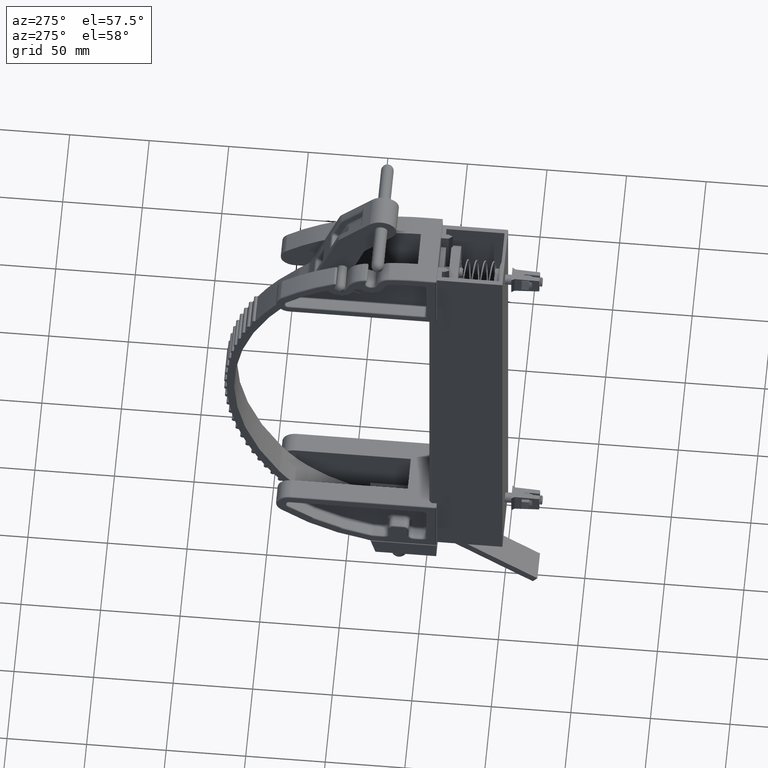
[diagram: clean part render]
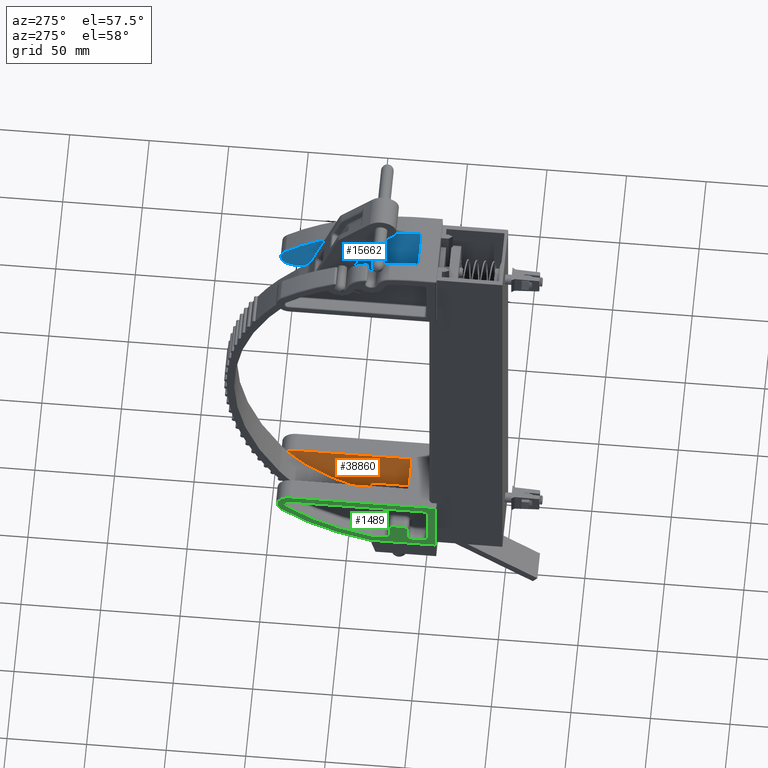
[diagram: same view with three faces highlighted in distinct colors, each labeled with its STEP entity id]
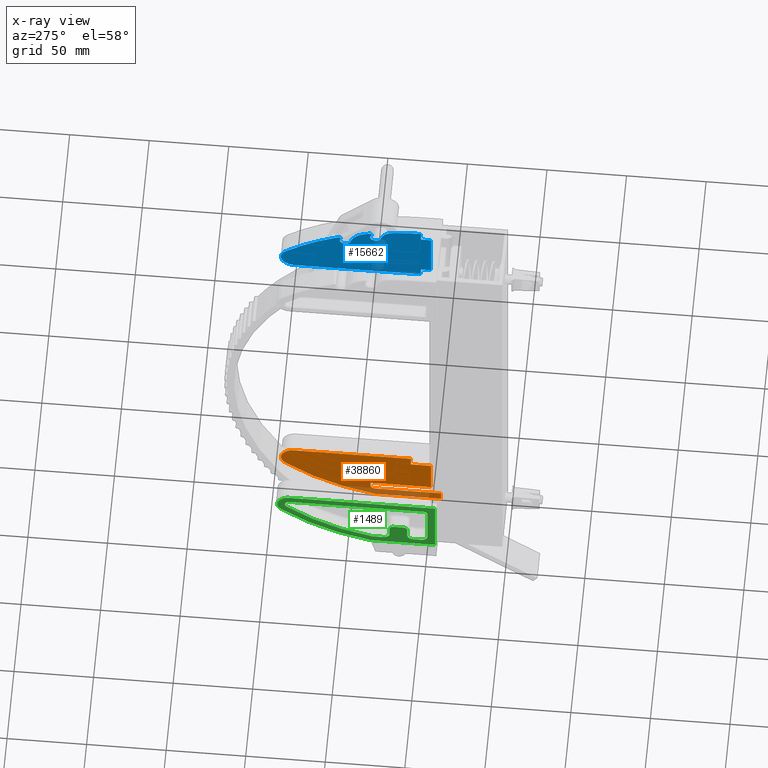
[diagram: x-ray of the same camera — body ghosted, the three highlighted faces saturated]
A machine part, auxiliary view with three faces highlighted in distinct colors.
The next image is the same camera in x-ray (body ghosted, the three faces saturated) — at least one of them is partly hidden behind the body in this view.
Their STEP definitions:

[orange] entity #38860 — the highlighted planar face has unit normal (1, -0, -0).
#136 = PLANE ( 'NONE',  #3117 ) ;
#203 = ORIENTED_EDGE ( 'NONE', *, *, #29117, .T. ) ;
#234 = VECTOR ( 'NONE', #1171, 39.37007874015748100 ) ;
#1116 = CARTESIAN_POINT ( 'NONE',  ( -0.3422000000000010600, 3.625131516786317400, -0.4375000000000011700 ) ) ;
#1171 = DIRECTION ( 'NONE',  ( -4.703678538700026900E-016, -1.000000000000000000, 1.791996912894873300E-016 ) ) ;
#1669 = VECTOR ( 'NONE', #26374, 39.37007874015748100 ) ;
#3117 = AXIS2_PLACEMENT_3D ( 'NONE', #33383, #27449, #9282 ) ;
#3734 = ORIENTED_EDGE ( 'NONE', *, *, #33107, .F. ) ;
#3867 = FACE_OUTER_BOUND ( 'NONE', #18855, .T. ) ;
#4174 = DIRECTION ( 'NONE',  ( 3.991595548895761300E-016, 1.000000000000000000, -1.995797774447880700E-016 ) ) ;
#4665 = VERTEX_POINT ( 'NONE', #21933 ) ;
#5288 = DIRECTION ( 'NONE',  ( 4.703678538700026900E-016, 1.000000000000000000, -1.974259457950977600E-016 ) ) ;
#5693 = LINE ( 'NONE', #15317, #36975 ) ;
#6700 = DIRECTION ( 'NONE',  ( -1.000000000000000000, -4.703678538700001200E-016, -1.189118794682176700E-015 ) ) ;
#7110 = EDGE_CURVE ( 'NONE', #8891, #32130, #22134, .T. ) ;
#7190 = LINE ( 'NONE', #28727, #38425 ) ;
#7544 = CARTESIAN_POINT ( 'NONE',  ( -1.228000000000002200, 1.750000000000000200, -0.4375000000000021100 ) ) ;
#7915 = EDGE_CURVE ( 'NONE', #11948, #8891, #19231, .T. ) ;
#8447 = CARTESIAN_POINT ( 'NONE',  ( -1.478000000000002200, 1.624999999999998700, -0.4375000000000021100 ) ) ;
#8680 = CIRCLE ( 'NONE', #26900, 0.3422000000000005000 ) ;
#8891 = VERTEX_POINT ( 'NONE', #37061 ) ;
#9282 = DIRECTION ( 'NONE',  ( 4.703678538700026900E-016, 1.000000000000000000, -1.974259457950978400E-016 ) ) ;
#9480 = EDGE_CURVE ( 'NONE', #32130, #24928, #8680, .T. ) ;
#9739 = LINE ( 'NONE', #23324, #1669 ) ;
#10298 = CARTESIAN_POINT ( 'NONE',  ( -1.228000000000001300, 0.2499999999999995300, -0.4375000000000016100 ) ) ;
#10497 = LINE ( 'NONE', #35638, #26620 ) ;
#10703 = DIRECTION ( 'NONE',  ( -1.000000000000000000, -4.703678538700001200E-016, -9.159339953157513800E-016 ) ) ;
#11066 = EDGE_CURVE ( 'NONE', #31701, #30720, #15805, .T. ) ;
#11259 = CARTESIAN_POINT ( 'NONE',  ( 0.0000000000000000000, 0.7500000000000007800, -0.4375000000000000000 ) ) ;
#11887 = EDGE_CURVE ( 'NONE', #4665, #36153, #7190, .T. ) ;
#11948 = VERTEX_POINT ( 'NONE', #17076 ) ;
#13280 = VERTEX_POINT ( 'NONE', #11259 ) ;
#13359 = DIRECTION ( 'NONE',  ( -1.000000000000000000, -5.928284892522373500E-016, -9.159339953157513800E-016 ) ) ;
#13461 = CARTESIAN_POINT ( 'NONE',  ( -1.353000000000002600, 1.624999999999998700, -0.4375000000000021100 ) ) ;
#13628 = ORIENTED_EDGE ( 'NONE', *, *, #7110, .F. ) ;
#14785 = VERTEX_POINT ( 'NONE', #31962 ) ;
#15132 = ORIENTED_EDGE ( 'NONE', *, *, #11066, .T. ) ;
#15317 = CARTESIAN_POINT ( 'NONE',  ( 0.0000000000000000000, 3.967331516786317900, -0.4375000000000003300 ) ) ;
#15805 = CIRCLE ( 'NONE', #26427, 0.1249999999999999000 ) ;
#16290 = CARTESIAN_POINT ( 'NONE',  ( 0.0000000000000000000, 0.7500000000000002200, -0.4375000000000000000 ) ) ;
#16316 = VECTOR ( 'NONE', #6700, 39.37007874015748100 ) ;
#16395 = DIRECTION ( 'NONE',  ( -9.159339953157559200E-016, 4.731846360597925000E-016, -1.000000000000000000 ) ) ;
#16453 = CARTESIAN_POINT ( 'NONE',  ( -1.478000000000002200, -8.195543980992789700E-016, -0.4375000000000015000 ) ) ;
#16491 = LINE ( 'NONE', #22627, #38700 ) ;
#16519 = DIRECTION ( 'NONE',  ( 0.0000000000000000000, 1.000000000000000000, 0.0000000000000000000 ) ) ;
#16596 = CARTESIAN_POINT ( 'NONE',  ( 0.0000000000000000000, 3.625131516786318300, -0.4375000000000003900 ) ) ;
#17036 = VERTEX_POINT ( 'NONE', #16453 ) ;
#17076 = CARTESIAN_POINT ( 'NONE',  ( -1.728000000000003100, -2.458663194297837100E-015, -0.4375000000000020500 ) ) ;
#18696 = VERTEX_POINT ( 'NONE', #7544 ) ;
#18855 = EDGE_LOOP ( 'NONE', ( #203, #36979, #38079, #24638, #19872, #19494, #13628, #33912, #20594, #36109, #15132, #3734 ) ) ;
#19231 = LINE ( 'NONE', #26500, #34388 ) ;
#19323 = DIRECTION ( 'NONE',  ( -1.000000000000000000, -4.703678538700001200E-016, -9.159339953157513800E-016 ) ) ;
#19418 = LINE ( 'NONE', #16290, #26512 ) ;
#19494 = ORIENTED_EDGE ( 'NONE', *, *, #9480, .F. ) ;
#19700 = CARTESIAN_POINT ( 'NONE',  ( -0.6003733570119365000, 3.849736409273519600, -0.4375000000000012200 ) ) ;
#19731 = EDGE_CURVE ( 'NONE', #13280, #24928, #5693, .T. ) ;
#19872 = ORIENTED_EDGE ( 'NONE', *, *, #19731, .T. ) ;
#20594 = ORIENTED_EDGE ( 'NONE', *, *, #21907, .F. ) ;
#21379 = DIRECTION ( 'NONE',  ( 4.703678538700026900E-016, 1.000000000000000000, -1.974259457950977600E-016 ) ) ;
#21907 = EDGE_CURVE ( 'NONE', #17036, #11948, #16491, .T. ) ;
#21933 = CARTESIAN_POINT ( 'NONE',  ( -0.2500000000000014400, 0.2500000000000003300, -0.4375000000000008900 ) ) ;
#22134 = CIRCLE ( 'NONE', #33688, 5.103538870235047000 ) ;
#22333 = DIRECTION ( 'NONE',  ( -9.159339953157559200E-016, 4.731846360597925000E-016, -1.000000000000000000 ) ) ;
#22627 = CARTESIAN_POINT ( 'NONE',  ( 0.0000000000000000000, 0.0000000000000000000, -0.4375000000000001700 ) ) ;
#22735 = EDGE_CURVE ( 'NONE', #31701, #17036, #10497, .T. ) ;
#23324 = CARTESIAN_POINT ( 'NONE',  ( -0.2499999999999987000, 0.7500000000000002200, -0.4375000000000007200 ) ) ;
#23491 = DIRECTION ( 'NONE',  ( -4.703678538700026900E-016, -1.000000000000000000, 1.791996912894873300E-016 ) ) ;
#24357 = LINE ( 'NONE', #24868, #16316 ) ;
#24638 = ORIENTED_EDGE ( 'NONE', *, *, #36128, .F. ) ;
#24868 = CARTESIAN_POINT ( 'NONE',  ( -1.228000000000002200, 1.750000000000000200, -0.4375000000000021600 ) ) ;
#24928 = VERTEX_POINT ( 'NONE', #16596 ) ;
#25374 = LINE ( 'NONE', #37460, #234 ) ;
#26374 = DIRECTION ( 'NONE',  ( -4.703678538700026900E-016, -1.000000000000000000, 1.791996912894873300E-016 ) ) ;
#26427 = AXIS2_PLACEMENT_3D ( 'NONE', #13461, #34634, #16519 ) ;
#26500 = CARTESIAN_POINT ( 'NONE',  ( -1.728000000000000900, 3.967331516786316600, -0.4375000000000022200 ) ) ;
#26512 = VECTOR ( 'NONE', #19323, 39.37007874015748100 ) ;
#26620 = VECTOR ( 'NONE', #23491, 39.37007874015748100 ) ;
#26900 = AXIS2_PLACEMENT_3D ( 'NONE', #1116, #22333, #4174 ) ;
#27449 = DIRECTION ( 'NONE',  ( -9.159339953157561200E-016, -1.974259457950974200E-016, -1.000000000000000000 ) ) ;
#28727 = CARTESIAN_POINT ( 'NONE',  ( -0.2500000000000014400, 0.2500000000000003300, -0.4375000000000008900 ) ) ;
#28734 = EDGE_CURVE ( 'NONE', #14785, #4665, #9739, .T. ) ;
#29117 = EDGE_CURVE ( 'NONE', #18696, #36153, #25374, .T. ) ;
#29987 = CARTESIAN_POINT ( 'NONE',  ( -1.353000000000002600, 1.750000000000000200, -0.4375000000000021600 ) ) ;
#30720 = VERTEX_POINT ( 'NONE', #29987 ) ;
#31701 = VERTEX_POINT ( 'NONE', #8447 ) ;
#31962 = CARTESIAN_POINT ( 'NONE',  ( -0.2499999999999987000, 0.7499999999999996700, -0.4375000000000007200 ) ) ;
#32130 = VERTEX_POINT ( 'NONE', #19700 ) ;
#33107 = EDGE_CURVE ( 'NONE', #18696, #30720, #24357, .T. ) ;
#33383 = CARTESIAN_POINT ( 'NONE',  ( -1.728000000000000900, 3.967331516786316600, -0.4375000000000022200 ) ) ;
#33688 = AXIS2_PLACEMENT_3D ( 'NONE', #34507, #16395, #37554 ) ;
#33912 = ORIENTED_EDGE ( 'NONE', *, *, #7915, .F. ) ;
#34388 = VECTOR ( 'NONE', #5288, 39.37007874015748100 ) ;
#34507 = CARTESIAN_POINT ( 'NONE',  ( 3.250000000000012000, 0.5000000000000023300, -0.4374999999999976100 ) ) ;
#34634 = DIRECTION ( 'NONE',  ( -9.159339953157559200E-016, 4.731846360597925000E-016, -1.000000000000000000 ) ) ;
#35638 = CARTESIAN_POINT ( 'NONE',  ( -1.478000000000002200, 1.750000000000000200, -0.4375000000000021100 ) ) ;
#36109 = ORIENTED_EDGE ( 'NONE', *, *, #22735, .F. ) ;
#36128 = EDGE_CURVE ( 'NONE', #13280, #14785, #19418, .T. ) ;
#36153 = VERTEX_POINT ( 'NONE', #10298 ) ;
#36975 = VECTOR ( 'NONE', #21379, 39.37007874015748100 ) ;
#36979 = ORIENTED_EDGE ( 'NONE', *, *, #11887, .F. ) ;
#37061 = CARTESIAN_POINT ( 'NONE',  ( -1.728000000000003100, 1.624999999999999800, -0.4375000000000025500 ) ) ;
#37460 = CARTESIAN_POINT ( 'NONE',  ( -1.228000000000002200, 1.750000000000000200, -0.4375000000000021600 ) ) ;
#37554 = DIRECTION ( 'NONE',  ( 4.282280297065234000E-016, 1.000000000000000000, -2.007318889249328300E-016 ) ) ;
#38079 = ORIENTED_EDGE ( 'NONE', *, *, #28734, .F. ) ;
#38425 = VECTOR ( 'NONE', #10703, 39.37007874015748100 ) ;
#38700 = VECTOR ( 'NONE', #13359, 39.37007874015748100 ) ;
#38860 = ADVANCED_FACE ( 'NONE', ( #3867 ), #136, .F. ) ;

[blue] entity #15662 — the highlighted planar face has unit normal (1, -0, 0).
#76 = VERTEX_POINT ( 'NONE', #36132 ) ;
#143 = LINE ( 'NONE', #8969, #9150 ) ;
#156 = VERTEX_POINT ( 'NONE', #19946 ) ;
#371 = EDGE_CURVE ( 'NONE', #24944, #10998, #19905, .T. ) ;
#396 = ORIENTED_EDGE ( 'NONE', *, *, #371, .F. ) ;
#1331 = CARTESIAN_POINT ( 'NONE',  ( -0.6277702278904446800, 3.850898843547277700, 0.4375000000000019400 ) ) ;
#1532 = CARTESIAN_POINT ( 'NONE',  ( -0.3689999999999998300, 3.627287642670562900, 0.4375000000000019400 ) ) ;
#1566 = EDGE_CURVE ( 'NONE', #37307, #37372, #32966, .T. ) ;
#1799 = EDGE_CURVE ( 'NONE', #35855, #5817, #11151, .T. ) ;
#2121 = CARTESIAN_POINT ( 'NONE',  ( -1.625000000000002400, 0.2500000000000000600, 0.4375000000000004400 ) ) ;
#2608 = CARTESIAN_POINT ( 'NONE',  ( -1.690635737369611900, 1.862256771180178300, 0.4375000000000012800 ) ) ;
#2633 = DIRECTION ( 'NONE',  ( -1.665334536937737300E-016, -4.582631431597536600E-016, 1.000000000000000000 ) ) ;
#2792 = EDGE_CURVE ( 'NONE', #10998, #37307, #3127, .T. ) ;
#2806 = CIRCLE ( 'NONE', #13745, 0.3419999999999998000 ) ;
#2836 = VERTEX_POINT ( 'NONE', #36715 ) ;
#3127 = CIRCLE ( 'NONE', #25330, 0.04499999999999965800 ) ;
#3190 = CARTESIAN_POINT ( 'NONE',  ( 3.250000000000009300, 0.5000000000000006700, 0.4374999999999995000 ) ) ;
#3613 = EDGE_CURVE ( 'NONE', #6832, #76, #25814, .T. ) ;
#3636 = DIRECTION ( 'NONE',  ( 2.531697206586616600E-017, 1.000000000000000000, 5.266005165944379900E-016 ) ) ;
#3916 = ORIENTED_EDGE ( 'NONE', *, *, #8115, .F. ) ;
#4328 = CARTESIAN_POINT ( 'NONE',  ( -1.452456306060886400, 2.528423219432692500, 0.4375000000000013300 ) ) ;
#4411 = CARTESIAN_POINT ( 'NONE',  ( -1.875000000000002200, 0.4999999999999998300, 0.4375000000000006100 ) ) ;
#4588 = DIRECTION ( 'NONE',  ( 0.0000000000000000000, -1.000000000000000000, -3.993929815298632700E-016 ) ) ;
#4621 = ORIENTED_EDGE ( 'NONE', *, *, #37312, .T. ) ;
#4642 = ORIENTED_EDGE ( 'NONE', *, *, #3613, .F. ) ;
#4829 = CARTESIAN_POINT ( 'NONE',  ( -1.384714271343564500, 2.489592820813619300, 0.4375000000000013300 ) ) ;
#4875 = CARTESIAN_POINT ( 'NONE',  ( -1.531667481825920800, 1.494756595172150900, 0.4375000000000006700 ) ) ;
#5269 = VERTEX_POINT ( 'NONE', #9826 ) ;
#5404 = FACE_OUTER_BOUND ( 'NONE', #6273, .T. ) ;
#5408 = ORIENTED_EDGE ( 'NONE', *, *, #29997, .T. ) ;
#5445 = VECTOR ( 'NONE', #30453, 39.37007874015748100 ) ;
#5783 = CARTESIAN_POINT ( 'NONE',  ( -0.02699999999999946500, 3.627287642670562900, 0.4375000000000013900 ) ) ;
#5817 = VERTEX_POINT ( 'NONE', #27547 ) ;
#6231 = DIRECTION ( 'NONE',  ( 0.0000000000000000000, -1.000000000000000000, -4.530869843150485300E-016 ) ) ;
#6273 = EDGE_LOOP ( 'NONE', ( #6896, #28990, #38233, #4642, #22179, #22239, #16799, #8752, #16748, #396, #4621, #5408, #3916, #14443, #20424, #6496, #13181, #31621 ) ) ;
#6496 = ORIENTED_EDGE ( 'NONE', *, *, #1799, .T. ) ;
#6816 = LINE ( 'NONE', #8645, #29057 ) ;
#6832 = VERTEX_POINT ( 'NONE', #17055 ) ;
#6837 = CIRCLE ( 'NONE', #24358, 0.1328000000000000000 ) ;
#6896 = ORIENTED_EDGE ( 'NONE', *, *, #31246, .F. ) ;
#6918 = AXIS2_PLACEMENT_3D ( 'NONE', #36088, #17968, #39148 ) ;
#8115 = EDGE_CURVE ( 'NONE', #25850, #16532, #21569, .T. ) ;
#8533 = CIRCLE ( 'NONE', #36287, 0.04500000000000074800 ) ;
#8576 = EDGE_CURVE ( 'NONE', #37372, #5269, #10176, .T. ) ;
#8595 = CARTESIAN_POINT ( 'NONE',  ( -1.875000000000004400, 4.390713233934498300, 0.4375000000000025500 ) ) ;
#8635 = AXIS2_PLACEMENT_3D ( 'NONE', #35628, #17505, #38671 ) ;
#8645 = CARTESIAN_POINT ( 'NONE',  ( -0.02700000000000001400, 4.390713233934498300, 0.4375000000000020500 ) ) ;
#8752 = ORIENTED_EDGE ( 'NONE', *, *, #1566, .F. ) ;
#8969 = CARTESIAN_POINT ( 'NONE',  ( -1.875000000000002200, 0.4999999999999998300, 0.4375000000000006100 ) ) ;
#9007 = EDGE_CURVE ( 'NONE', #156, #11898, #6837, .T. ) ;
#9150 = VECTOR ( 'NONE', #11862, 39.37007874015748100 ) ;
#9303 = DIRECTION ( 'NONE',  ( -1.665334536937737300E-016, 2.827266907532066300E-016, 1.000000000000000000 ) ) ;
#9349 = LINE ( 'NONE', #32848, #32550 ) ;
#9555 = DIRECTION ( 'NONE',  ( 0.0000000000000000000, -1.000000000000000000, 0.0000000000000000000 ) ) ;
#9826 = CARTESIAN_POINT ( 'NONE',  ( -1.288517599682704500, 2.245423559271817000, 0.4375000000000012800 ) ) ;
#10176 = CIRCLE ( 'NONE', #38017, 0.1327999999999992000 ) ;
#10216 = EDGE_CURVE ( 'NONE', #34731, #6832, #37615, .T. ) ;
#10717 = EDGE_CURVE ( 'NONE', #26026, #5817, #143, .T. ) ;
#10935 = CARTESIAN_POINT ( 'NONE',  ( -0.2500000000000003300, 0.2500000000000000600, 0.4374999999999998900 ) ) ;
#10998 = VERTEX_POINT ( 'NONE', #28165 ) ;
#11151 = LINE ( 'NONE', #18824, #34396 ) ;
#11862 = DIRECTION ( 'NONE',  ( 1.000000000000000000, 1.481594402373489700E-016, -1.665334536937731100E-016 ) ) ;
#11898 = VERTEX_POINT ( 'NONE', #4875 ) ;
#12818 = AXIS2_PLACEMENT_3D ( 'NONE', #8595, #2633, #23835 ) ;
#13090 = AXIS2_PLACEMENT_3D ( 'NONE', #37008, #35867, #18844 ) ;
#13181 = ORIENTED_EDGE ( 'NONE', *, *, #10717, .F. ) ;
#13269 = CARTESIAN_POINT ( 'NONE',  ( -1.670698283831421700, 1.762191902801832200, 0.4375000000000012800 ) ) ;
#13577 = CARTESIAN_POINT ( 'NONE',  ( 3.250000000000009300, 0.5000000000000006700, 0.4374999999999995000 ) ) ;
#13632 = DIRECTION ( 'NONE',  ( 1.665334536937737300E-016, -2.827266907532066300E-016, -1.000000000000000000 ) ) ;
#13745 = AXIS2_PLACEMENT_3D ( 'NONE', #1532, #22739, #4588 ) ;
#14010 = DIRECTION ( 'NONE',  ( 1.000000000000000000, 2.531697206586611100E-017, -1.665334536937731400E-016 ) ) ;
#14193 = CARTESIAN_POINT ( 'NONE',  ( -1.670698283831421700, 1.762191902801832200, 0.4375000000000012800 ) ) ;
#14443 = ORIENTED_EDGE ( 'NONE', *, *, #27352, .F. ) ;
#14536 = DIRECTION ( 'NONE',  ( 1.665334536937737300E-016, -2.827266907532066300E-016, -1.000000000000000000 ) ) ;
#14856 = VERTEX_POINT ( 'NONE', #26133 ) ;
#15662 = ADVANCED_FACE ( 'NONE', ( #5404 ), #32799, .F. ) ;
#16326 = DIRECTION ( 'NONE',  ( 0.0000000000000000000, -1.000000000000000000, 0.0000000000000000000 ) ) ;
#16532 = VERTEX_POINT ( 'NONE', #17249 ) ;
#16631 = DIRECTION ( 'NONE',  ( 0.0000000000000000000, -1.000000000000000000, -4.530869843150485300E-016 ) ) ;
#16748 = ORIENTED_EDGE ( 'NONE', *, *, #2792, .F. ) ;
#16799 = ORIENTED_EDGE ( 'NONE', *, *, #8576, .F. ) ;
#17055 = CARTESIAN_POINT ( 'NONE',  ( -1.714287146581896300, 1.773372736586494600, 0.4375000000000012800 ) ) ;
#17225 = DIRECTION ( 'NONE',  ( 0.0000000000000000000, -1.000000000000000000, 0.0000000000000000000 ) ) ;
#17249 = CARTESIAN_POINT ( 'NONE',  ( -0.02699999999999946500, 0.5000000000000001100, 0.4375000000000000600 ) ) ;
#17505 = DIRECTION ( 'NONE',  ( -1.665334536937737300E-016, 2.827266907532066300E-016, 1.000000000000000000 ) ) ;
#17968 = DIRECTION ( 'NONE',  ( -1.665334536937737300E-016, 2.827266907532066300E-016, 1.000000000000000000 ) ) ;
#18824 = CARTESIAN_POINT ( 'NONE',  ( -1.625000000000002400, 0.2500000000000000600, 0.4375000000000004400 ) ) ;
#18844 = DIRECTION ( 'NONE',  ( 0.0000000000000000000, -1.000000000000000000, -4.530869843150485300E-016 ) ) ;
#18942 = VERTEX_POINT ( 'NONE', #5783 ) ;
#18947 = CARTESIAN_POINT ( 'NONE',  ( -1.407456306060886500, 2.528423219432692500, 0.4375000000000013300 ) ) ;
#19905 = CIRCLE ( 'NONE', #13090, 5.125000000000000000 ) ;
#19946 = CARTESIAN_POINT ( 'NONE',  ( -1.642073858789723700, 1.727469542700130500, 0.4375000000000012800 ) ) ;
#20424 = ORIENTED_EDGE ( 'NONE', *, *, #32205, .F. ) ;
#20549 = AXIS2_PLACEMENT_3D ( 'NONE', #3190, #24398, #6231 ) ;
#20798 = DIRECTION ( 'NONE',  ( 2.531697206586616600E-017, 1.000000000000000000, 5.266005165944379900E-016 ) ) ;
#21569 = LINE ( 'NONE', #33505, #5445 ) ;
#22179 = ORIENTED_EDGE ( 'NONE', *, *, #10216, .F. ) ;
#22239 = ORIENTED_EDGE ( 'NONE', *, *, #32872, .F. ) ;
#22739 = DIRECTION ( 'NONE',  ( 1.665334536937737300E-016, -2.827266907532066300E-016, -1.000000000000000000 ) ) ;
#23835 = DIRECTION ( 'NONE',  ( -2.531697206586619100E-017, -1.000000000000000000, -4.582631431597536600E-016 ) ) ;
#24280 = AXIS2_PLACEMENT_3D ( 'NONE', #18947, #28079, #25184 ) ;
#24358 = AXIS2_PLACEMENT_3D ( 'NONE', #31757, #13632, #34808 ) ;
#24398 = DIRECTION ( 'NONE',  ( -1.665334536937737300E-016, 2.827266907532066300E-016, 1.000000000000000000 ) ) ;
#24903 = LINE ( 'NONE', #10935, #32905 ) ;
#24944 = VERTEX_POINT ( 'NONE', #1331 ) ;
#25184 = DIRECTION ( 'NONE',  ( 0.0000000000000000000, -1.000000000000000000, 0.0000000000000000000 ) ) ;
#25330 = AXIS2_PLACEMENT_3D ( 'NONE', #27590, #9303, #9555 ) ;
#25814 = CIRCLE ( 'NONE', #29125, 0.04500000000000074800 ) ;
#25850 = VERTEX_POINT ( 'NONE', #27764 ) ;
#26026 = VERTEX_POINT ( 'NONE', #4411 ) ;
#26039 = EDGE_CURVE ( 'NONE', #2836, #26026, #27464, .T. ) ;
#26133 = CARTESIAN_POINT ( 'NONE',  ( -0.2500000000000003300, 0.2500000000000000600, 0.4374999999999998900 ) ) ;
#27352 = EDGE_CURVE ( 'NONE', #14856, #25850, #9349, .T. ) ;
#27464 = CIRCLE ( 'NONE', #35374, 5.125000000000000000 ) ;
#27547 = CARTESIAN_POINT ( 'NONE',  ( -1.625000000000002400, 0.5000000000000001100, 0.4375000000000005000 ) ) ;
#27590 = CARTESIAN_POINT ( 'NONE',  ( -1.407456306060886500, 2.528423219432692500, 0.4375000000000013300 ) ) ;
#27764 = CARTESIAN_POINT ( 'NONE',  ( -0.2500000000000003300, 0.5000000000000001100, 0.4375000000000000000 ) ) ;
#28079 = DIRECTION ( 'NONE',  ( -1.665334536937737300E-016, 2.827266907532066300E-016, 1.000000000000000000 ) ) ;
#28165 = CARTESIAN_POINT ( 'NONE',  ( -1.448713300898040800, 2.546391535352863700, 0.4375000000000013300 ) ) ;
#28270 = CIRCLE ( 'NONE', #8635, 0.3750000000000001100 ) ;
#28990 = ORIENTED_EDGE ( 'NONE', *, *, #9007, .F. ) ;
#29057 = VECTOR ( 'NONE', #32862, 39.37007874015748100 ) ;
#29125 = AXIS2_PLACEMENT_3D ( 'NONE', #14193, #35364, #17225 ) ;
#29997 = EDGE_CURVE ( 'NONE', #18942, #16532, #6816, .T. ) ;
#30453 = DIRECTION ( 'NONE',  ( 1.000000000000000000, 1.481594402373489700E-016, -1.665334536937731100E-016 ) ) ;
#31246 = EDGE_CURVE ( 'NONE', #11898, #2836, #28270, .T. ) ;
#31621 = ORIENTED_EDGE ( 'NONE', *, *, #26039, .F. ) ;
#31757 = CARTESIAN_POINT ( 'NONE',  ( -1.557600000000002100, 1.624999999999999100, 0.4375000000000012200 ) ) ;
#31934 = CIRCLE ( 'NONE', #6918, 0.5397323390364063800 ) ;
#32205 = EDGE_CURVE ( 'NONE', #35855, #14856, #24903, .T. ) ;
#32550 = VECTOR ( 'NONE', #20798, 39.37007874015748100 ) ;
#32659 = CARTESIAN_POINT ( 'NONE',  ( -1.317600000000001200, 2.374999999999999600, 0.4375000000000012800 ) ) ;
#32799 = PLANE ( 'NONE',  #12818 ) ;
#32848 = CARTESIAN_POINT ( 'NONE',  ( -0.2500000000000003300, 0.2500000000000000600, 0.4374999999999998900 ) ) ;
#32862 = DIRECTION ( 'NONE',  ( 9.755854461871721300E-017, -1.000000000000000000, -4.582631431597536600E-016 ) ) ;
#32872 = EDGE_CURVE ( 'NONE', #5269, #34731, #31934, .T. ) ;
#32905 = VECTOR ( 'NONE', #14010, 39.37007874015748100 ) ;
#32966 = CIRCLE ( 'NONE', #24280, 0.04499999999999965800 ) ;
#33505 = CARTESIAN_POINT ( 'NONE',  ( -1.875000000000002200, 0.4999999999999998300, 0.4375000000000006100 ) ) ;
#34396 = VECTOR ( 'NONE', #3636, 39.37007874015748100 ) ;
#34443 = DIRECTION ( 'NONE',  ( -1.665334536937737300E-016, 2.827266907532066300E-016, 1.000000000000000000 ) ) ;
#34731 = VERTEX_POINT ( 'NONE', #2608 ) ;
#34742 = DIRECTION ( 'NONE',  ( -1.665334536937737300E-016, 2.827266907532066300E-016, 1.000000000000000000 ) ) ;
#34808 = DIRECTION ( 'NONE',  ( 0.0000000000000000000, -1.000000000000000000, -5.142786132651097800E-016 ) ) ;
#35364 = DIRECTION ( 'NONE',  ( -1.665334536937737300E-016, 2.827266907532066300E-016, 1.000000000000000000 ) ) ;
#35374 = AXIS2_PLACEMENT_3D ( 'NONE', #13577, #34742, #16631 ) ;
#35628 = CARTESIAN_POINT ( 'NONE',  ( -1.458439361981941600, 1.126975896298330100, 0.4375000000000006700 ) ) ;
#35697 = DIRECTION ( 'NONE',  ( 0.0000000000000000000, -1.000000000000000000, -5.142786132651129400E-016 ) ) ;
#35855 = VERTEX_POINT ( 'NONE', #2121 ) ;
#35867 = DIRECTION ( 'NONE',  ( -1.665334536937737300E-016, 2.827266907532066300E-016, 1.000000000000000000 ) ) ;
#36088 = CARTESIAN_POINT ( 'NONE',  ( -1.170319467543785800, 1.718792569526075500, 0.4375000000000012800 ) ) ;
#36132 = CARTESIAN_POINT ( 'NONE',  ( -1.715698283831422300, 1.762191902801832200, 0.4375000000000012800 ) ) ;
#36287 = AXIS2_PLACEMENT_3D ( 'NONE', #13269, #34443, #16326 ) ;
#36543 = EDGE_CURVE ( 'NONE', #76, #156, #8533, .T. ) ;
#36715 = CARTESIAN_POINT ( 'NONE',  ( -1.830158258980516800, 1.176473993374513900, 0.4375000000000006700 ) ) ;
#37008 = CARTESIAN_POINT ( 'NONE',  ( 3.250000000000009300, 0.5000000000000006700, 0.4374999999999995000 ) ) ;
#37307 = VERTEX_POINT ( 'NONE', #4328 ) ;
#37312 = EDGE_CURVE ( 'NONE', #24944, #18942, #2806, .T. ) ;
#37372 = VERTEX_POINT ( 'NONE', #4829 ) ;
#37615 = CIRCLE ( 'NONE', #20549, 5.125000000000000000 ) ;
#38017 = AXIS2_PLACEMENT_3D ( 'NONE', #32659, #14536, #35697 ) ;
#38233 = ORIENTED_EDGE ( 'NONE', *, *, #36543, .F. ) ;
#38671 = DIRECTION ( 'NONE',  ( 0.0000000000000000000, -1.000000000000000000, -5.463695987328524500E-016 ) ) ;
#39148 = DIRECTION ( 'NONE',  ( 0.0000000000000000000, -1.000000000000000000, -5.061486585260908000E-016 ) ) ;

[green] entity #1489 — the highlighted planar face has unit normal (-1, -0, -0).
#135 = DIRECTION ( 'NONE',  ( 1.000000000000000000, 0.0000000000000000000, 1.456985596620933100E-015 ) ) ;
#1104 = ORIENTED_EDGE ( 'NONE', *, *, #24918, .T. ) ;
#1489 = ADVANCED_FACE ( 'NONE', ( #37436, #18782 ), #3021, .T. ) ;
#1578 = EDGE_CURVE ( 'NONE', #25830, #11910, #32031, .T. ) ;
#1833 = EDGE_LOOP ( 'NONE', ( #10753, #7837, #27396, #26340, #26096 ) ) ;
#2385 = DIRECTION ( 'NONE',  ( -1.000000000000000000, 3.501054743568891400E-016, -9.159339953157517800E-016 ) ) ;
#3009 = DIRECTION ( 'NONE',  ( 1.000000000000000000, 7.284927983104665400E-016, 1.456985596620933100E-015 ) ) ;
#3021 = PLANE ( 'NONE',  #10050 ) ;
#3023 = CARTESIAN_POINT ( 'NONE',  ( -1.509250000000002400, 0.3749999999999999400, 0.9374999999999987800 ) ) ;
#3400 = LINE ( 'NONE', #15925, #18583 ) ;
#3410 = CARTESIAN_POINT ( 'NONE',  ( -1.102999999999999800, 0.8125000000000006700, 0.9374999999999987800 ) ) ;
#3545 = LINE ( 'NONE', #28842, #26758 ) ;
#3919 = ORIENTED_EDGE ( 'NONE', *, *, #31893, .T. ) ;
#4187 = VERTEX_POINT ( 'NONE', #37833 ) ;
#4322 = VECTOR ( 'NONE', #2385, 39.37007874015748100 ) ;
#4327 = VERTEX_POINT ( 'NONE', #26573 ) ;
#4354 = ORIENTED_EDGE ( 'NONE', *, *, #29120, .T. ) ;
#4382 = CARTESIAN_POINT ( 'NONE',  ( -1.509250000000002400, 0.5624999999999990000, 0.9374999999999987800 ) ) ;
#4634 = VERTEX_POINT ( 'NONE', #24865 ) ;
#4773 = ORIENTED_EDGE ( 'NONE', *, *, #35892, .T. ) ;
#5425 = CARTESIAN_POINT ( 'NONE',  ( -1.509250000000002400, 1.600318928434915700, 0.9374999999999973400 ) ) ;
#5577 = CARTESIAN_POINT ( 'NONE',  ( -0.2187500000000010500, 0.3125000000000008300, 0.9375000000000003300 ) ) ;
#5759 = AXIS2_PLACEMENT_3D ( 'NONE', #33723, #15612, #36768 ) ;
#5897 = VERTEX_POINT ( 'NONE', #27814 ) ;
#5917 = AXIS2_PLACEMENT_3D ( 'NONE', #31658, #13544, #34705 ) ;
#6963 = VERTEX_POINT ( 'NONE', #11852 ) ;
#7036 = VECTOR ( 'NONE', #27576, 39.37007874015748100 ) ;
#7144 = AXIS2_PLACEMENT_3D ( 'NONE', #33280, #21150, #3009 ) ;
#7153 = CARTESIAN_POINT ( 'NONE',  ( -0.2187500000000010500, 0.3125000000000002800, 0.9375000000000003300 ) ) ;
#7213 = LINE ( 'NONE', #13712, #22387 ) ;
#7274 = DIRECTION ( 'NONE',  ( -8.620889947258378600E-016, -1.000000000000000000, 3.353052909274448100E-016 ) ) ;
#7363 = VECTOR ( 'NONE', #7274, 39.37007874015748100 ) ;
#7707 = ORIENTED_EDGE ( 'NONE', *, *, #17686, .T. ) ;
#7837 = ORIENTED_EDGE ( 'NONE', *, *, #26271, .T. ) ;
#8463 = VECTOR ( 'NONE', #29551, 39.37007874015748100 ) ;
#8643 = CARTESIAN_POINT ( 'NONE',  ( -1.353000000000000600, 0.7187499999999995600, 0.9374999999999987800 ) ) ;
#8734 = ORIENTED_EDGE ( 'NONE', *, *, #17989, .T. ) ;
#8998 = EDGE_CURVE ( 'NONE', #6963, #4634, #31942, .T. ) ;
#9330 = ORIENTED_EDGE ( 'NONE', *, *, #23273, .T. ) ;
#9416 = CARTESIAN_POINT ( 'NONE',  ( -1.102999999999999800, 0.7187500000000006700, 0.9374999999999987800 ) ) ;
#9848 = CARTESIAN_POINT ( 'NONE',  ( -1.353000000000000600, 1.312499999999998000, 0.9374999999999987800 ) ) ;
#10003 = CARTESIAN_POINT ( 'NONE',  ( -1.353000000000000600, 0.3750000000000007800, 0.9374999999999987800 ) ) ;
#10050 = AXIS2_PLACEMENT_3D ( 'NONE', #26602, #31142, #34116 ) ;
#10665 = ORIENTED_EDGE ( 'NONE', *, *, #34907, .T. ) ;
#10753 = ORIENTED_EDGE ( 'NONE', *, *, #38346, .T. ) ;
#10932 = CARTESIAN_POINT ( 'NONE',  ( -1.696750000000002600, 1.621507387675317000, 0.9374999999999973400 ) ) ;
#11382 = CARTESIAN_POINT ( 'NONE',  ( -1.353000000000000600, 0.2187500000000002200, 0.9374999999999987800 ) ) ;
#11559 = AXIS2_PLACEMENT_3D ( 'NONE', #32496, #14368, #35546 ) ;
#11823 = VECTOR ( 'NONE', #35603, 39.37007874015748100 ) ;
#11852 = CARTESIAN_POINT ( 'NONE',  ( -0.03124999999999983700, 0.03125000000000011100, 0.9375000000000000000 ) ) ;
#11910 = VERTEX_POINT ( 'NONE', #26080 ) ;
#12753 = AXIS2_PLACEMENT_3D ( 'NONE', #17449, #38625, #20474 ) ;
#12900 = DIRECTION ( 'NONE',  ( 1.000000000000000000, 1.748382715945120800E-015, 8.741913579725603800E-016 ) ) ;
#13063 = DIRECTION ( 'NONE',  ( 1.000000000000000000, 4.370956789862801900E-016, 8.741913579725603800E-016 ) ) ;
#13257 = VERTEX_POINT ( 'NONE', #17109 ) ;
#13307 = CIRCLE ( 'NONE', #23160, 4.884788870235070100 ) ;
#13348 = ORIENTED_EDGE ( 'NONE', *, *, #34372, .T. ) ;
#13544 = DIRECTION ( 'NONE',  ( 9.159339953157563200E-016, -3.353052909274451100E-016, 1.000000000000000000 ) ) ;
#13712 = CARTESIAN_POINT ( 'NONE',  ( -1.509250000000002400, 1.596747721621740100, 0.9374999999999973400 ) ) ;
#13874 = CIRCLE ( 'NONE', #14901, 0.1562500000000006900 ) ;
#13899 = CARTESIAN_POINT ( 'NONE',  ( -0.3421999999999994500, 3.625131516786317400, 0.9374999999999987800 ) ) ;
#13951 = VECTOR ( 'NONE', #22633, 39.37007874015748100 ) ;
#14368 = DIRECTION ( 'NONE',  ( -9.159339953157563200E-016, 3.353052909274451100E-016, -1.000000000000000000 ) ) ;
#14441 = CARTESIAN_POINT ( 'NONE',  ( -1.009249999999999500, 1.062500000000000400, 0.9374999999999987800 ) ) ;
#14901 = AXIS2_PLACEMENT_3D ( 'NONE', #9848, #31044, #12900 ) ;
#15612 = DIRECTION ( 'NONE',  ( -9.159339953157563200E-016, 3.353052909274451100E-016, -1.000000000000000000 ) ) ;
#15688 = CIRCLE ( 'NONE', #20347, 0.1562500000000006900 ) ;
#15925 = CARTESIAN_POINT ( 'NONE',  ( -1.353000000000000600, 1.156250000000000000, 0.9374999999999987800 ) ) ;
#16093 = VERTEX_POINT ( 'NONE', #10932 ) ;
#16559 = CARTESIAN_POINT ( 'NONE',  ( -0.03124999999999819900, 3.625131516786318300, 0.9374999999999985600 ) ) ;
#16941 = DIRECTION ( 'NONE',  ( 1.000000000000000000, 0.0000000000000000000, 8.785489608182176100E-016 ) ) ;
#17109 = CARTESIAN_POINT ( 'NONE',  ( -0.4353370570517946000, 3.706158617831159000, 0.9374999999999987800 ) ) ;
#17133 = CIRCLE ( 'NONE', #35694, 0.3109500000000017800 ) ;
#17297 = LINE ( 'NONE', #7153, #7363 ) ;
#17449 = CARTESIAN_POINT ( 'NONE',  ( 3.250000000000012400, 0.5000000000000023300, 0.9375000000000017800 ) ) ;
#17686 = EDGE_CURVE ( 'NONE', #13257, #5897, #31423, .T. ) ;
#17838 = CARTESIAN_POINT ( 'NONE',  ( 3.250000000000012400, 0.5000000000000023300, 0.9375000000000017800 ) ) ;
#17989 = EDGE_CURVE ( 'NONE', #26909, #30975, #13874, .T. ) ;
#18274 = VERTEX_POINT ( 'NONE', #5577 ) ;
#18583 = VECTOR ( 'NONE', #34041, 39.37007874015748100 ) ;
#18594 = VERTEX_POINT ( 'NONE', #25186 ) ;
#18761 = EDGE_CURVE ( 'NONE', #4634, #18594, #17133, .T. ) ;
#18782 = FACE_BOUND ( 'NONE', #35646, .T. ) ;
#18959 = LINE ( 'NONE', #14441, #11823 ) ;
#20347 = AXIS2_PLACEMENT_3D ( 'NONE', #10003, #31204, #13063 ) ;
#20397 = DIRECTION ( 'NONE',  ( 9.159339953157563200E-016, -3.353052909274451100E-016, 1.000000000000000000 ) ) ;
#20474 = DIRECTION ( 'NONE',  ( 1.000000000000000000, 4.712600278906140300E-016, 9.155909113303358100E-016 ) ) ;
#20856 = DIRECTION ( 'NONE',  ( 1.000000000000000000, 4.753676886147341100E-016, 9.227725720168368300E-016 ) ) ;
#21150 = DIRECTION ( 'NONE',  ( -9.159339953157563200E-016, 3.353052909274451100E-016, -1.000000000000000000 ) ) ;
#21662 = EDGE_CURVE ( 'NONE', #30182, #35688, #38248, .T. ) ;
#22189 = CARTESIAN_POINT ( 'NONE',  ( -1.696750000000002600, 0.03124999999999901800, 0.9374999999999987800 ) ) ;
#22210 = LINE ( 'NONE', #9416, #7036 ) ;
#22387 = VECTOR ( 'NONE', #38045, 39.37007874015748100 ) ;
#22526 = CARTESIAN_POINT ( 'NONE',  ( -0.3125000000000016700, 0.2187500000000002200, 0.9375000000000003300 ) ) ;
#22579 = DIRECTION ( 'NONE',  ( 4.703678538700026900E-016, 1.000000000000000000, -3.353052909274451100E-016 ) ) ;
#22586 = EDGE_CURVE ( 'NONE', #30975, #28792, #7213, .T. ) ;
#22633 = DIRECTION ( 'NONE',  ( 4.703678538700026900E-016, 1.000000000000000000, -3.353052909274451100E-016 ) ) ;
#22896 = DIRECTION ( 'NONE',  ( 1.000000000000000000, 5.928284892522373500E-016, 9.159339953157513800E-016 ) ) ;
#23160 = AXIS2_PLACEMENT_3D ( 'NONE', #17838, #39005, #20856 ) ;
#23273 = EDGE_CURVE ( 'NONE', #31532, #4327, #36537, .T. ) ;
#23483 = CARTESIAN_POINT ( 'NONE',  ( -1.696750000000002600, -2.731847993664263200E-016, 0.9374999999999987800 ) ) ;
#23600 = CIRCLE ( 'NONE', #12753, 5.072288870235070100 ) ;
#23866 = EDGE_CURVE ( 'NONE', #28792, #13257, #13307, .T. ) ;
#24102 = EDGE_CURVE ( 'NONE', #4327, #30182, #15688, .T. ) ;
#24865 = CARTESIAN_POINT ( 'NONE',  ( -0.03124999999999819900, 3.625131516786318300, 0.9374999999999985600 ) ) ;
#24918 = EDGE_CURVE ( 'NONE', #4187, #29672, #34099, .T. ) ;
#25186 = CARTESIAN_POINT ( 'NONE',  ( -0.5767967427319163900, 3.829225296210325300, 0.9374999999999973400 ) ) ;
#25830 = VERTEX_POINT ( 'NONE', #30393 ) ;
#26080 = CARTESIAN_POINT ( 'NONE',  ( -1.009249999999999500, 0.8125000000000006700, 0.9374999999999987800 ) ) ;
#26096 = ORIENTED_EDGE ( 'NONE', *, *, #18761, .T. ) ;
#26271 = EDGE_CURVE ( 'NONE', #16093, #31003, #30755, .T. ) ;
#26340 = ORIENTED_EDGE ( 'NONE', *, *, #8998, .T. ) ;
#26573 = CARTESIAN_POINT ( 'NONE',  ( -1.353000000000000600, 0.2187500000000002200, 0.9374999999999987800 ) ) ;
#26602 = CARTESIAN_POINT ( 'NONE',  ( 3.250000000000012400, 0.5000000000000023300, 0.9375000000000017800 ) ) ;
#26758 = VECTOR ( 'NONE', #22896, 39.37007874015748100 ) ;
#26886 = ORIENTED_EDGE ( 'NONE', *, *, #21662, .T. ) ;
#26909 = VERTEX_POINT ( 'NONE', #32809 ) ;
#27286 = CIRCLE ( 'NONE', #7144, 0.09375000000000047200 ) ;
#27396 = ORIENTED_EDGE ( 'NONE', *, *, #29298, .T. ) ;
#27576 = DIRECTION ( 'NONE',  ( 1.000000000000000000, 4.703678538700001200E-016, 9.159339953157513800E-016 ) ) ;
#27814 = CARTESIAN_POINT ( 'NONE',  ( -0.2187499999999988600, 3.625131516786318300, 0.9374999999999987800 ) ) ;
#28245 = ORIENTED_EDGE ( 'NONE', *, *, #23866, .T. ) ;
#28331 = AXIS2_PLACEMENT_3D ( 'NONE', #3410, #20397, #135 ) ;
#28792 = VERTEX_POINT ( 'NONE', #5425 ) ;
#28842 = CARTESIAN_POINT ( 'NONE',  ( 0.0000000000000000000, 0.03125000000000011100, 0.9375000000000000000 ) ) ;
#29120 = EDGE_CURVE ( 'NONE', #5897, #18274, #17297, .T. ) ;
#29298 = EDGE_CURVE ( 'NONE', #31003, #6963, #3545, .T. ) ;
#29551 = DIRECTION ( 'NONE',  ( -3.022541311829700700E-016, -1.000000000000000000, 3.353052909274453100E-016 ) ) ;
#29654 = ORIENTED_EDGE ( 'NONE', *, *, #38061, .T. ) ;
#29672 = VERTEX_POINT ( 'NONE', #37018 ) ;
#30182 = VERTEX_POINT ( 'NONE', #3023 ) ;
#30214 = VECTOR ( 'NONE', #22579, 39.37007874015748100 ) ;
#30393 = CARTESIAN_POINT ( 'NONE',  ( -1.102999999999999800, 0.7187500000000006700, 0.9374999999999987800 ) ) ;
#30755 = LINE ( 'NONE', #23483, #8463 ) ;
#30975 = VERTEX_POINT ( 'NONE', #37267 ) ;
#31003 = VERTEX_POINT ( 'NONE', #22189 ) ;
#31044 = DIRECTION ( 'NONE',  ( -9.159339953157563200E-016, 3.353052909274451100E-016, -1.000000000000000000 ) ) ;
#31142 = DIRECTION ( 'NONE',  ( -9.159339953157511900E-016, -3.353052909274460000E-016, 1.000000000000000000 ) ) ;
#31204 = DIRECTION ( 'NONE',  ( -9.159339953157563200E-016, 3.353052909274451100E-016, -1.000000000000000000 ) ) ;
#31423 = CIRCLE ( 'NONE', #11559, 0.1234500000000013100 ) ;
#31517 = ORIENTED_EDGE ( 'NONE', *, *, #24102, .T. ) ;
#31532 = VERTEX_POINT ( 'NONE', #22526 ) ;
#31658 = CARTESIAN_POINT ( 'NONE',  ( -1.102999999999999800, 1.062500000000000400, 0.9374999999999987800 ) ) ;
#31893 = EDGE_CURVE ( 'NONE', #18274, #31532, #27286, .T. ) ;
#31942 = LINE ( 'NONE', #16559, #13951 ) ;
#32031 = CIRCLE ( 'NONE', #28331, 0.09375000000000047200 ) ;
#32496 = CARTESIAN_POINT ( 'NONE',  ( -0.3421999999999994500, 3.625131516786317400, 0.9374999999999987800 ) ) ;
#32809 = CARTESIAN_POINT ( 'NONE',  ( -1.353000000000000600, 1.156250000000000000, 0.9374999999999987800 ) ) ;
#33280 = CARTESIAN_POINT ( 'NONE',  ( -0.3124999999999994400, 0.3125000000000000000, 0.9375000000000003300 ) ) ;
#33535 = VERTEX_POINT ( 'NONE', #8643 ) ;
#33607 = ORIENTED_EDGE ( 'NONE', *, *, #22586, .T. ) ;
#33723 = CARTESIAN_POINT ( 'NONE',  ( -1.353000000000000600, 0.5624999999999997800, 0.9374999999999987800 ) ) ;
#34041 = DIRECTION ( 'NONE',  ( -1.000000000000000000, -4.703678538700001200E-016, -9.159339953157513800E-016 ) ) ;
#34099 = CIRCLE ( 'NONE', #5917, 0.09375000000000047200 ) ;
#34116 = DIRECTION ( 'NONE',  ( 1.000000000000000000, 4.703678538700001200E-016, 9.159339953157513800E-016 ) ) ;
#34372 = EDGE_CURVE ( 'NONE', #29672, #26909, #3400, .T. ) ;
#34619 = CARTESIAN_POINT ( 'NONE',  ( -1.509250000000002400, 0.5624999999999990000, 0.9374999999999987800 ) ) ;
#34705 = DIRECTION ( 'NONE',  ( 1.000000000000000000, 0.0000000000000000000, 1.456985596620933100E-015 ) ) ;
#34907 = EDGE_CURVE ( 'NONE', #35688, #33535, #36529, .T. ) ;
#35072 = DIRECTION ( 'NONE',  ( 9.159339953157563200E-016, -3.353052909274451100E-016, 1.000000000000000000 ) ) ;
#35546 = DIRECTION ( 'NONE',  ( 1.000000000000000000, 0.0000000000000000000, 1.106459292695113100E-015 ) ) ;
#35603 = DIRECTION ( 'NONE',  ( 4.703678538700026900E-016, 1.000000000000000000, -3.353052909274451100E-016 ) ) ;
#35646 = EDGE_LOOP ( 'NONE', ( #1104, #13348, #8734, #33607, #28245, #7707, #4354, #3919, #9330, #31517, #26886, #10665, #29654, #38983, #4773 ) ) ;
#35688 = VERTEX_POINT ( 'NONE', #4382 ) ;
#35694 = AXIS2_PLACEMENT_3D ( 'NONE', #13899, #35072, #16941 ) ;
#35892 = EDGE_CURVE ( 'NONE', #11910, #4187, #18959, .T. ) ;
#36529 = CIRCLE ( 'NONE', #5759, 0.1562500000000006900 ) ;
#36537 = LINE ( 'NONE', #11382, #4322 ) ;
#36768 = DIRECTION ( 'NONE',  ( 1.000000000000000000, 2.185478394931400700E-015, 8.741913579725603800E-016 ) ) ;
#37018 = CARTESIAN_POINT ( 'NONE',  ( -1.102999999999999800, 1.156250000000000400, 0.9374999999999987800 ) ) ;
#37267 = CARTESIAN_POINT ( 'NONE',  ( -1.509250000000002400, 1.312499999999998000, 0.9374999999999973400 ) ) ;
#37436 = FACE_OUTER_BOUND ( 'NONE', #1833, .T. ) ;
#37833 = CARTESIAN_POINT ( 'NONE',  ( -1.009249999999999500, 1.062500000000000400, 0.9374999999999987800 ) ) ;
#38045 = DIRECTION ( 'NONE',  ( -1.451792139587846500E-015, 1.000000000000000000, -3.353052909274469300E-016 ) ) ;
#38061 = EDGE_CURVE ( 'NONE', #33535, #25830, #22210, .T. ) ;
#38248 = LINE ( 'NONE', #34619, #30214 ) ;
#38346 = EDGE_CURVE ( 'NONE', #18594, #16093, #23600, .T. ) ;
#38625 = DIRECTION ( 'NONE',  ( 9.159339953157563200E-016, -3.353052909274451100E-016, 1.000000000000000000 ) ) ;
#38983 = ORIENTED_EDGE ( 'NONE', *, *, #1578, .T. ) ;
#39005 = DIRECTION ( 'NONE',  ( -9.159339953157563200E-016, 3.353052909274451100E-016, -1.000000000000000000 ) ) ;